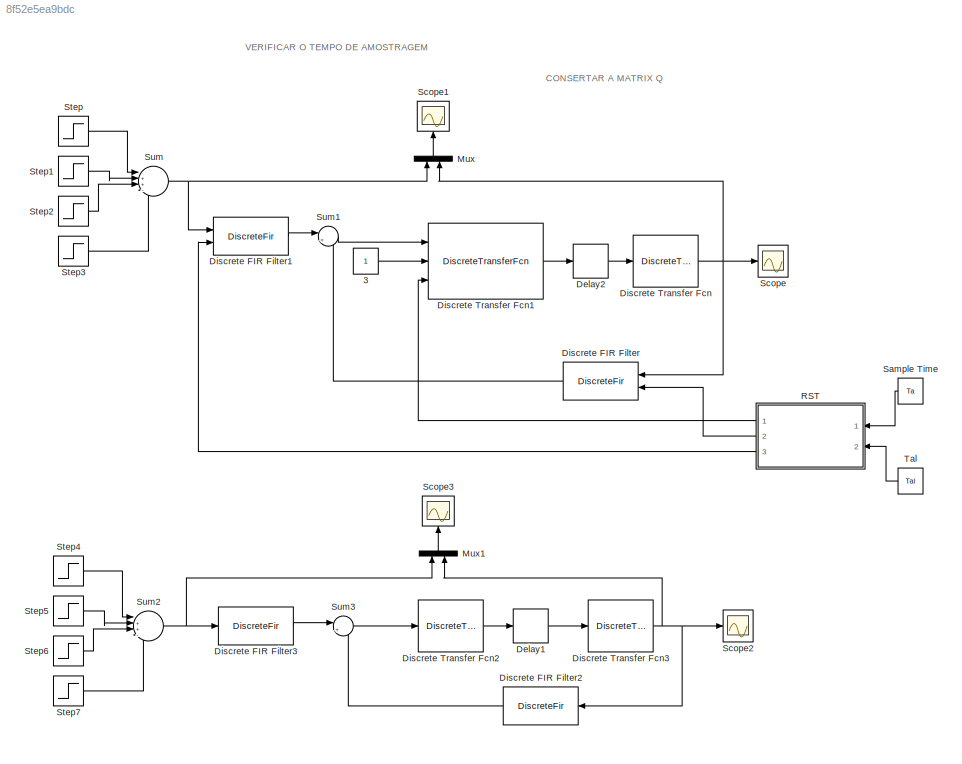
MODEL slx_8f52e5ea9bdc
KIND model
CONFIG AbsTol = auto
CONFIG EnableMultiTasking = off
CONFIG FixedStep = auto
CONFIG MaxStep = auto
CONFIG MinStep = auto
CONFIG RelTol = 1e-3
CONFIG SampleTimeConstraint = Unconstrained
CONFIG Solver = ode45
CONFIG SolverName = ode45
CONFIG StartTime = 0.0
CONFIG StopTime = 50
BLOCK [Constant] 3
BLOCK [Delay] Delay1
  DelayLength = 1
  InitialCondition = 0
  InputPortMap = u0
  Ports = [1, 1]
  SampleTime = 1
BLOCK [Delay] Delay2
  DelayLength = 1
  InitialCondition = 0
  InputPortMap = u0
  Ports = [1, 1]
  SampleTime = 1
BLOCK [DiscreteFir] Discrete FIR Filter
  CoefSource = Input port
  InputPortMap = u0,u1
  OutputPortMap = o0
  Ports = [2, 1]
  SampleTime = 1
BLOCK [DiscreteFir] Discrete FIR Filter1
  CoefSource = Input port
  InputPortMap = u0,u1
  OutputPortMap = o0
  Ports = [2, 1]
  SampleTime = 1
BLOCK [DiscreteFir] Discrete FIR Filter2
  Coefficients = S
  InputPortMap = u0
  OutputPortMap = o0
  Ports = [1, 1]
  SampleTime = 1
BLOCK [DiscreteFir] Discrete FIR Filter3
  Coefficients = T
  InputPortMap = u0
  OutputPortMap = o0
  Ports = [1, 1]
  SampleTime = 1
BLOCK [DiscreteTransferFcn] Discrete Transfer Fcn
  Denominator = A
  InputPortMap = u0
  Numerator = B
  Ports = [1, 1]
  SampleTime = 1
BLOCK [DiscreteTransferFcn] Discrete Transfer Fcn1
  Denominator = A
  DenominatorSource = Input port
  InputPortMap = u0,p1,p3
  Numerator = B
  NumeratorSource = Input port
  Ports = [3, 1]
  SampleTime = 1
  a0EqualsOne = on
BLOCK [DiscreteTransferFcn] Discrete Transfer Fcn2
  Denominator = R
  InputPortMap = u0
  Numerator = 1
  Ports = [1, 1]
  SampleTime = 1
BLOCK [DiscreteTransferFcn] Discrete Transfer Fcn3
  Denominator = A
  InputPortMap = u0
  Numerator = B
  Ports = [1, 1]
  SampleTime = 1
BLOCK [Mux] Mux
  DisplayOption = bar
  Inputs = 2
  Ports = [2, 1]
BLOCK [Mux] Mux1
  DisplayOption = bar
  Inputs = 2
  Ports = [2, 1]
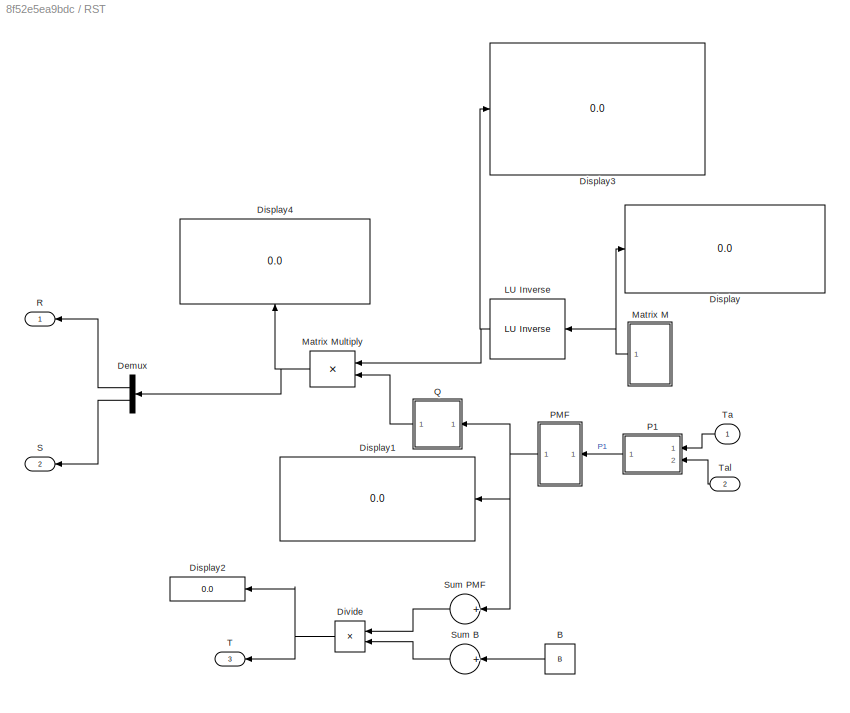
BLOCK [SubSystem] RST
  Ports = [2, 3]
  RequestExecContextInheritance = off
BLOCK [Reference] RST/ LU Inverse  REF=dspinverses/ LU Inverse
  Ports = [1, 1]
  SourceBlock = dspinverses/ LU Inverse
  SourceProductBaseCode = DS
  SourceProductName = DSP System Toolbox
  SourceType = LU Inverse
BLOCK [Constant] RST/B
  Value = B
BLOCK [Demux] RST/Demux
  DisplayOption = bar
  Outputs = 2
  Ports = [1, 2]
BLOCK [Display] RST/Display
  Decimation = 1
  Ports = [1]
BLOCK [Display] RST/Display1
  Decimation = 1
  Ports = [1]
BLOCK [Display] RST/Display2
  Decimation = 1
  Ports = [1]
BLOCK [Display] RST/Display3
  Decimation = 1
  Ports = [1]
BLOCK [Display] RST/Display4
  Decimation = 1
  Ports = [1]
BLOCK [Product] RST/Divide
  InputSameDT = off
  Inputs = */
  OutDataTypeStr = Inherit: Inherit via internal rule
  Ports = [2, 1]
  RndMeth = Floor
  SaturateOnIntegerOverflow = off
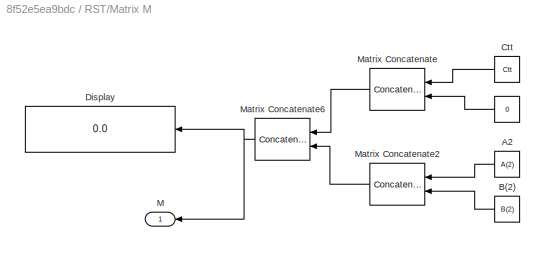
BLOCK [SubSystem] RST/Matrix M
  Ports = [0, 1]
  RequestExecContextInheritance = off
BLOCK [Constant] RST/Matrix M/ 
  Value = 0
BLOCK [Constant] RST/Matrix M/ B(2)
  Value = B(2)
BLOCK [Constant] RST/Matrix M/A2
  Value = A(2)
BLOCK [Constant] RST/Matrix M/Ctt
  Value = Ctt
BLOCK [Display] RST/Matrix M/Display
  Decimation = 1
  Ports = [1]
BLOCK [Outport] RST/Matrix M/M
  IconDisplay = Port number
BLOCK [Concatenate] RST/Matrix M/Matrix Concatenate
  ConcatenateDimension = 2
  Mode = Multidimensional array
  Ports = [2, 1]
BLOCK [Concatenate] RST/Matrix M/Matrix Concatenate2
  ConcatenateDimension = 2
  Mode = Multidimensional array
  Ports = [2, 1]
BLOCK [Concatenate] RST/Matrix M/Matrix Concatenate6
  Mode = Multidimensional array
  Ports = [2, 1]
BLOCK [Product] RST/Matrix Multiply
  InputSameDT = off
  Multiplication = Matrix(*)
  OutDataTypeStr = Inherit: Inherit via internal rule
  Ports = [2, 1]
  RndMeth = Floor
  SaturateOnIntegerOverflow = off
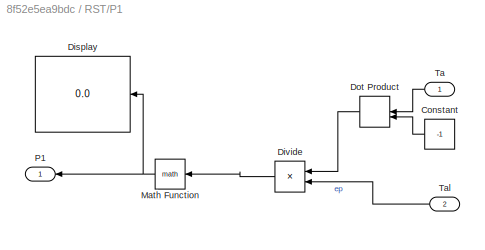
BLOCK [SubSystem] RST/P1
  Ports = [2, 1]
  RequestExecContextInheritance = off
BLOCK [Constant] RST/P1/Constant
  Value = -1
BLOCK [Display] RST/P1/Display
  Decimation = 1
  Ports = [1]
BLOCK [Product] RST/P1/Divide
  InputSameDT = off
  Inputs = */
  OutDataTypeStr = Inherit: Inherit via internal rule
  Ports = [2, 1]
  RndMeth = Floor
  SaturateOnIntegerOverflow = off
BLOCK [DotProduct] RST/P1/Dot Product
  OutDataTypeStr = Inherit: Inherit via internal rule
BLOCK [Math] RST/P1/Math Function
  Ports = [1, 1]
BLOCK [Outport] RST/P1/P1
  IconDisplay = Port number
BLOCK [Inport] RST/P1/Ta
  IconDisplay = Port number
BLOCK [Inport] RST/P1/Tal
  IconDisplay = Port number
  Port = 2
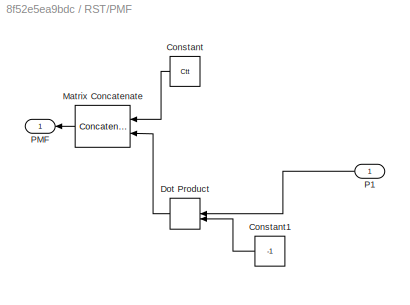
BLOCK [SubSystem] RST/PMF
  Ports = [1, 1]
  RequestExecContextInheritance = off
BLOCK [Constant] RST/PMF/Constant
  Value = Ctt
BLOCK [Constant] RST/PMF/Constant1
  Value = -1
BLOCK [DotProduct] RST/PMF/Dot Product
  OutDataTypeStr = Inherit: Inherit via internal rule
BLOCK [Concatenate] RST/PMF/Matrix Concatenate
  ConcatenateDimension = 2
  Mode = Multidimensional array
  Ports = [2, 1]
BLOCK [Inport] RST/PMF/P1
  IconDisplay = Port number
BLOCK [Outport] RST/PMF/PMF
  IconDisplay = Port number
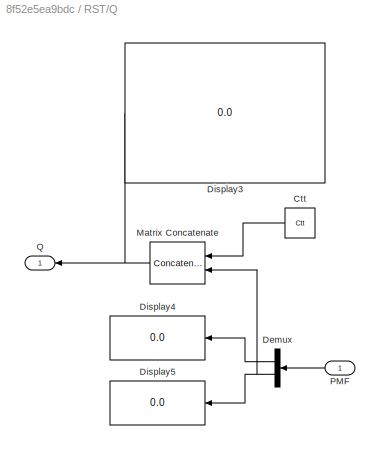
BLOCK [SubSystem] RST/Q
  Ports = [1, 1]
  RequestExecContextInheritance = off
BLOCK [Constant] RST/Q/Ctt
  Value = Ctt
BLOCK [Demux] RST/Q/Demux
  DisplayOption = bar
  Outputs = 2
  Ports = [1, 2]
BLOCK [Display] RST/Q/Display3
  Decimation = 1
  Ports = [1]
BLOCK [Display] RST/Q/Display4
  Decimation = 1
  Ports = [1]
BLOCK [Display] RST/Q/Display5
  Decimation = 1
  Ports = [1]
BLOCK [Concatenate] RST/Q/Matrix Concatenate
  Mode = Multidimensional array
  Ports = [2, 1]
BLOCK [Inport] RST/Q/PMF
  IconDisplay = Port number
BLOCK [Outport] RST/Q/Q
  IconDisplay = Port number
BLOCK [Outport] RST/R
  IconDisplay = Port number
BLOCK [Outport] RST/S
  IconDisplay = Port number
  Port = 2
BLOCK [Sum] RST/Sum B
  InputSameDT = off
  Inputs = +
  OutDataTypeStr = Inherit: Inherit via internal rule
  Ports = [1, 1]
  SaturateOnIntegerOverflow = off
BLOCK [Sum] RST/Sum PMF
  InputSameDT = off
  Inputs = +
  OutDataTypeStr = Inherit: Inherit via internal rule
  Ports = [1, 1]
  SaturateOnIntegerOverflow = off
BLOCK [Outport] RST/T
  IconDisplay = Port number
  Port = 3
BLOCK [Inport] RST/Ta
  IconDisplay = Port number
BLOCK [Inport] RST/Tal
  IconDisplay = Port number
  Port = 2
BLOCK [Constant] Sample Time
  Value = Ta
BLOCK [Scope] Scope
  Floating = off
  NumInputPorts = 1
  Ports = [1]
  ScopeSpecificationString = Simulink.scopes.TimeScopeBlockCfg('CurrentConfiguration', extmgr.ConfigurationSet(extmgr.Configuration('Core','General UI',true,'FigureColor',[0.156862745098039 0.156862745098039 0.156862745098039]),extmgr.Configuration('Core','Source UI',true),extmgr.Configuration('Sources','WiredSimulink',true,'DataLoggingVariableName','ScopeData1','DataLoggingSaveFormat','StructureWithTime','DataLoggingDecimati...<+3099ch>
BLOCK [Scope] Scope1
  Floating = off
  NumInputPorts = 1
  Ports = [1]
  ScopeSpecificationString = Simulink.scopes.TimeScopeBlockCfg('CurrentConfiguration', extmgr.ConfigurationSet(extmgr.Configuration('Core','General UI',true,'FigureColor',[0.156862745098039 0.156862745098039 0.156862745098039]),extmgr.Configuration('Core','Source UI',true),extmgr.Configuration('Sources','WiredSimulink',true,'DataLoggingVariableName','ScopeData2','DataLoggingSaveFormat','StructureWithTime','DataLoggingDecimati...<+3083ch>
BLOCK [Scope] Scope2
  Floating = off
  NumInputPorts = 1
  Ports = [1]
  ScopeSpecificationString = Simulink.scopes.TimeScopeBlockCfg('CurrentConfiguration', extmgr.ConfigurationSet(extmgr.Configuration('Core','General UI',true,'FigureColor',[0.156862745098039 0.156862745098039 0.156862745098039]),extmgr.Configuration('Core','Source UI',true),extmgr.Configuration('Sources','WiredSimulink',true,'DataLoggingVariableName','ScopeData3','DataLoggingSaveFormat','StructureWithTime','DataLoggingDecimati...<+2729ch>
BLOCK [Scope] Scope3
  Floating = off
  NumInputPorts = 1
  Ports = [1]
  ScopeSpecificationString = Simulink.scopes.TimeScopeBlockCfg('CurrentConfiguration', extmgr.ConfigurationSet(extmgr.Configuration('Core','General UI',true,'FigureColor',[0.156862745098039 0.156862745098039 0.156862745098039]),extmgr.Configuration('Core','Source UI',true),extmgr.Configuration('Sources','WiredSimulink',true,'DataLoggingSaveFormat','StructureWithTime','DataLoggingDecimation','1','DataLoggingDecimateData',true)...<+3044ch>
BLOCK [Step] Step
  SampleTime = 0
BLOCK [Step] Step1
  After = 3
  SampleTime = 0
  Time = 10
BLOCK [Step] Step2
  After = 2
  SampleTime = 0
  Time = 20
BLOCK [Step] Step3
  SampleTime = 0
  Time = 30
BLOCK [Step] Step4
  SampleTime = 0
BLOCK [Step] Step5
  After = 3
  SampleTime = 0
  Time = 10
BLOCK [Step] Step6
  After = 2
  SampleTime = 0
  Time = 20
BLOCK [Step] Step7
  SampleTime = 0
  Time = 30
BLOCK [Sum] Sum
  IconShape = round
  InputSameDT = off
  Inputs = |++-+
  OutDataTypeStr = Inherit: Inherit via internal rule
  Ports = [4, 1]
  SaturateOnIntegerOverflow = off
BLOCK [Sum] Sum1
  IconShape = round
  InputSameDT = off
  Inputs = |+-
  OutDataTypeStr = Inherit: Inherit via internal rule
  Ports = [2, 1]
  SaturateOnIntegerOverflow = off
BLOCK [Sum] Sum2
  IconShape = round
  InputSameDT = off
  Inputs = |++-+
  OutDataTypeStr = Inherit: Inherit via internal rule
  Ports = [4, 1]
  SaturateOnIntegerOverflow = off
BLOCK [Sum] Sum3
  IconShape = round
  InputSameDT = off
  Inputs = |+-
  OutDataTypeStr = Inherit: Inherit via internal rule
  Ports = [2, 1]
  SaturateOnIntegerOverflow = off
BLOCK [Constant] Tal
  Value = Tal
ANNOTATION (root): CONSERTAR A MATRIX Q
ANNOTATION (root): VERIFICAR O TEMPO DE AMOSTRAGEM
LINE 3:1 -> Discrete Transfer Fcn1:2
LINE Delay1:1 -> Discrete Transfer Fcn3:1
LINE Delay2:1 -> Discrete Transfer Fcn:1
LINE Discrete FIR Filter1:1 -> Sum1:1
LINE Discrete FIR Filter2:1 -> Sum3:2
LINE Discrete FIR Filter3:1 -> Sum3:1
LINE Discrete FIR Filter:1 -> Sum1:2
LINE Discrete Transfer Fcn1:1 -> Delay2:1
LINE Discrete Transfer Fcn2:1 -> Delay1:1
NET Discrete Transfer Fcn3:1 -> Discrete FIR Filter2:1, Mux1:2, Scope2:1
NET Discrete Transfer Fcn:1 -> Discrete FIR Filter:1, Mux:2, Scope:1
LINE Mux1:1 -> Scope3:1
LINE Mux:1 -> Scope1:1
NET RST/ LU Inverse:1 -> RST/Display3:1, RST/Matrix Multiply:1
LINE RST/B:1 -> RST/Sum B:1
LINE RST/Demux:1 -> RST/R:1
LINE RST/Demux:2 -> RST/S:1
NET RST/Divide:1 -> RST/Display2:1, RST/T:1
LINE RST/Matrix M/ :1 -> RST/Matrix M/Matrix Concatenate:2
LINE RST/Matrix M/ B(2):1 -> RST/Matrix M/Matrix Concatenate2:2
LINE RST/Matrix M/A2:1 -> RST/Matrix M/Matrix Concatenate2:1
LINE RST/Matrix M/Ctt:1 -> RST/Matrix M/Matrix Concatenate:1
LINE RST/Matrix M/Matrix Concatenate2:1 -> RST/Matrix M/Matrix Concatenate6:2
NET RST/Matrix M/Matrix Concatenate6:1 -> RST/Matrix M/Display:1, RST/Matrix M/M:1
LINE RST/Matrix M/Matrix Concatenate:1 -> RST/Matrix M/Matrix Concatenate6:1
NET RST/Matrix M:1 -> RST/ LU Inverse:1, RST/Display:1
NET RST/Matrix Multiply:1 -> RST/Demux:1, RST/Display4:1
LINE RST/P1/Constant:1 -> RST/P1/Dot Product:2
LINE RST/P1/Divide:1 -> RST/P1/Math Function:1
LINE RST/P1/Dot Product:1 -> RST/P1/Divide:1
NET RST/P1/Math Function:1 -> RST/P1/Display:1, RST/P1/P1:1
LINE RST/P1/Ta:1 -> RST/P1/Dot Product:1
LINE RST/P1/Tal:1 -> RST/P1/Divide:2
LINE RST/P1:1 -> RST/PMF:1
LINE RST/PMF/Constant1:1 -> RST/PMF/Dot Product:2
LINE RST/PMF/Constant:1 -> RST/PMF/Matrix Concatenate:1
LINE RST/PMF/Dot Product:1 -> RST/PMF/Matrix Concatenate:2
LINE RST/PMF/Matrix Concatenate:1 -> RST/PMF/PMF:1
LINE RST/PMF/P1:1 -> RST/PMF/Dot Product:1
NET RST/PMF:1 -> RST/Display1:1, RST/Q:1, RST/Sum PMF:1
LINE RST/Q/Ctt:1 -> RST/Q/Matrix Concatenate:1
LINE RST/Q/Demux:1 -> RST/Q/Display4:1
NET RST/Q/Demux:2 -> RST/Q/Display5:1, RST/Q/Matrix Concatenate:2
NET RST/Q/Matrix Concatenate:1 -> RST/Q/Display3:1, RST/Q/Q:1
LINE RST/Q/PMF:1 -> RST/Q/Demux:1
LINE RST/Q:1 -> RST/Matrix Multiply:2
LINE RST/Sum B:1 -> RST/Divide:2
LINE RST/Sum PMF:1 -> RST/Divide:1
LINE RST/Ta:1 -> RST/P1:1
LINE RST/Tal:1 -> RST/P1:2
LINE RST:1 -> Discrete Transfer Fcn1:3
LINE RST:2 -> Discrete FIR Filter:2
LINE RST:3 -> Discrete FIR Filter1:2
LINE Sample Time:1 -> RST:1
LINE Step1:1 -> Sum:2
LINE Step2:1 -> Sum:3
LINE Step3:1 -> Sum:4
LINE Step4:1 -> Sum2:1
LINE Step5:1 -> Sum2:2
LINE Step6:1 -> Sum2:3
LINE Step7:1 -> Sum2:4
LINE Step:1 -> Sum:1
LINE Sum1:1 -> Discrete Transfer Fcn1:1
NET Sum2:1 -> Discrete FIR Filter3:1, Mux1:1
LINE Sum3:1 -> Discrete Transfer Fcn2:1
NET Sum:1 -> Discrete FIR Filter1:1, Mux:1
LINE Tal:1 -> RST:2
note: NET lines group one-source signal fan-out (src -> all destinations, sorted); 1:1 wires keep LINE
